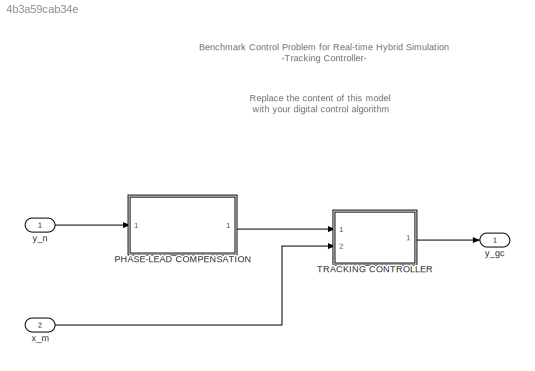
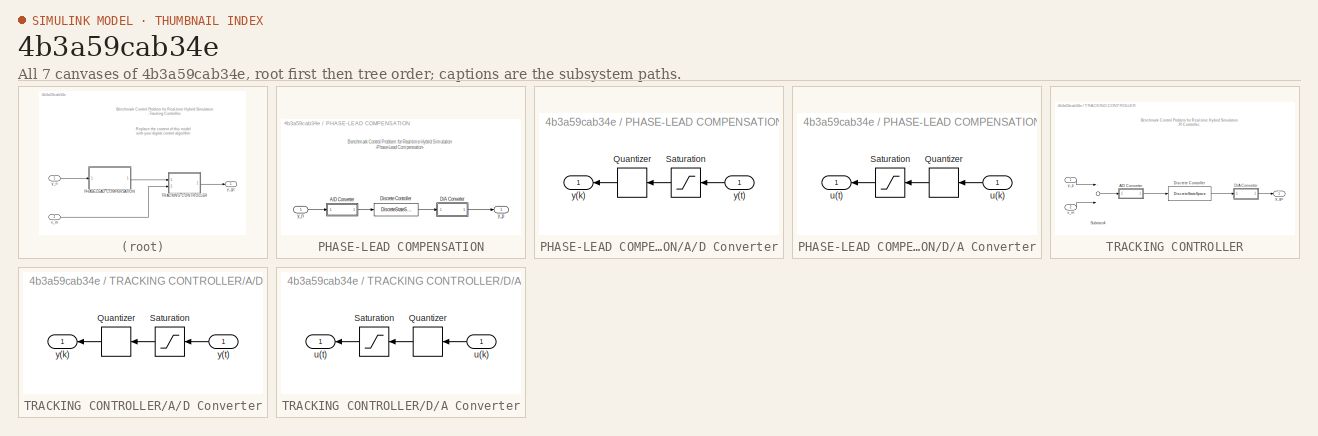
[diagram: thumbnail index - all 7 canvases of the model, root first then tree order]
MODEL slx_4b3a59cab34e
KIND model
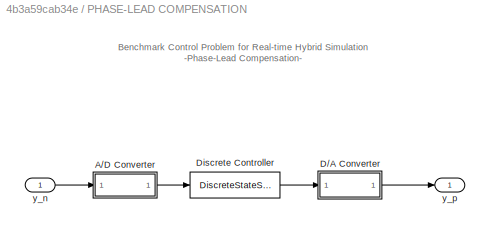
BLOCK [SubSystem] PHASE-LEAD COMPENSATION
  Ports = [1, 1]
  RequestExecContextInheritance = off
  Variant = off
BLOCK [SubSystem] PHASE-LEAD COMPENSATION/A//D Converter
  Ports = [1, 1]
  RequestExecContextInheritance = off
  Variant = off
BLOCK [Quantizer] PHASE-LEAD COMPENSATION/A//D Converter/Quantizer
  QuantizationInterval = quantize_int
BLOCK [Saturate] PHASE-LEAD COMPENSATION/A//D Converter/Saturation
  InputPortMap = u0
  LowerLimit = sat_limit_lower
  Ports = [1, 1]
  UpperLimit = sat_limit_upper
BLOCK [Outport] PHASE-LEAD COMPENSATION/A//D Converter/y(k)
  IconDisplay = Port number
BLOCK [Inport] PHASE-LEAD COMPENSATION/A//D Converter/y(t)
  IconDisplay = Port number
BLOCK [SubSystem] PHASE-LEAD COMPENSATION/D//A Converter
  Ports = [1, 1]
  RequestExecContextInheritance = off
  Variant = off
BLOCK [Quantizer] PHASE-LEAD COMPENSATION/D//A Converter/Quantizer
  QuantizationInterval = quantize_int
BLOCK [Saturate] PHASE-LEAD COMPENSATION/D//A Converter/Saturation
  InputPortMap = u0
  LowerLimit = sat_limit_lower
  Ports = [1, 1]
  UpperLimit = sat_limit_upper
BLOCK [Inport] PHASE-LEAD COMPENSATION/D//A Converter/u(k)
  IconDisplay = Port number
BLOCK [Outport] PHASE-LEAD COMPENSATION/D//A Converter/u(t)
  IconDisplay = Port number
BLOCK [DiscreteStateSpace] PHASE-LEAD COMPENSATION/Discrete Controller
  A = Apred
  B = Bpred
  C = Cpred
  D = Dpred
  SampleTime = dt_rths
BLOCK [Inport] PHASE-LEAD COMPENSATION/y_n
  IconDisplay = Port number
BLOCK [Outport] PHASE-LEAD COMPENSATION/y_p
  IconDisplay = Port number
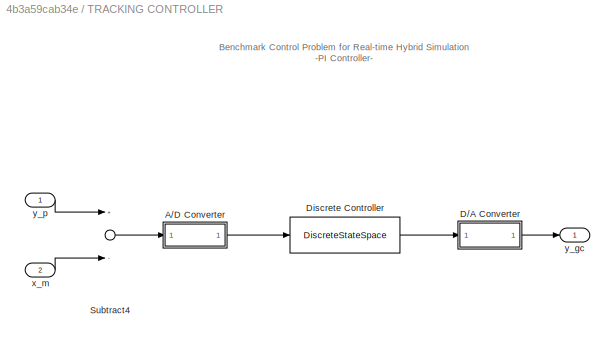
BLOCK [SubSystem] TRACKING CONTROLLER
  Ports = [2, 1]
  RequestExecContextInheritance = off
  Variant = off
BLOCK [SubSystem] TRACKING CONTROLLER/A//D Converter
  Ports = [1, 1]
  RequestExecContextInheritance = off
  Variant = off
BLOCK [Quantizer] TRACKING CONTROLLER/A//D Converter/Quantizer
  QuantizationInterval = quantize_int
BLOCK [Saturate] TRACKING CONTROLLER/A//D Converter/Saturation
  InputPortMap = u0
  LowerLimit = sat_limit_lower
  Ports = [1, 1]
  UpperLimit = sat_limit_upper
BLOCK [Outport] TRACKING CONTROLLER/A//D Converter/y(k)
  IconDisplay = Port number
BLOCK [Inport] TRACKING CONTROLLER/A//D Converter/y(t)
  IconDisplay = Port number
BLOCK [SubSystem] TRACKING CONTROLLER/D//A Converter
  Ports = [1, 1]
  RequestExecContextInheritance = off
  Variant = off
BLOCK [Quantizer] TRACKING CONTROLLER/D//A Converter/Quantizer
  QuantizationInterval = quantize_int
BLOCK [Saturate] TRACKING CONTROLLER/D//A Converter/Saturation
  InputPortMap = u0
  LowerLimit = sat_limit_lower
  Ports = [1, 1]
  UpperLimit = sat_limit_upper
BLOCK [Inport] TRACKING CONTROLLER/D//A Converter/u(k)
  IconDisplay = Port number
BLOCK [Outport] TRACKING CONTROLLER/D//A Converter/u(t)
  IconDisplay = Port number
BLOCK [DiscreteStateSpace] TRACKING CONTROLLER/Discrete Controller
  A = Acd
  B = Bcd
  C = Ccd
  D = Dcd
  SampleTime = dt_rths
BLOCK [Sum] TRACKING CONTROLLER/Subtract4
  InputSameDT = off
  Inputs = +-
  OutDataTypeStr = Inherit: Inherit via internal rule
  Ports = [2, 1]
  SaturateOnIntegerOverflow = off
BLOCK [Inport] TRACKING CONTROLLER/x_m
  IconDisplay = Port number
  Port = 2
BLOCK [Outport] TRACKING CONTROLLER/y_gc
  IconDisplay = Port number
BLOCK [Inport] TRACKING CONTROLLER/y_p
  IconDisplay = Port number
BLOCK [Inport] x_m
  IconDisplay = Port number
  Port = 2
BLOCK [Outport] y_gc
  IconDisplay = Port number
BLOCK [Inport] y_n
  IconDisplay = Port number
ANNOTATION (root): Replace the content of this model with your digital control algorithm
ANNOTATION (root): Benchmark Control Problem for Real-time Hybrid Simulation -Tracking Controller-
ANNOTATION PHASE-LEAD COMPENSATION: Benchmark Control Problem for Real-time Hybrid Simulation -Phase-Lead Compensation-
ANNOTATION TRACKING CONTROLLER: Benchmark Control Problem for Real-time Hybrid Simulation -PI Controller-
LINE PHASE-LEAD COMPENSATION/A//D Converter/Quantizer:1 -> PHASE-LEAD COMPENSATION/A//D Converter/y(k):1
LINE PHASE-LEAD COMPENSATION/A//D Converter/Saturation:1 -> PHASE-LEAD COMPENSATION/A//D Converter/Quantizer:1
LINE PHASE-LEAD COMPENSATION/A//D Converter/y(t):1 -> PHASE-LEAD COMPENSATION/A//D Converter/Saturation:1
LINE PHASE-LEAD COMPENSATION/A//D Converter:1 -> PHASE-LEAD COMPENSATION/Discrete Controller:1
LINE PHASE-LEAD COMPENSATION/D//A Converter/Quantizer:1 -> PHASE-LEAD COMPENSATION/D//A Converter/Saturation:1
LINE PHASE-LEAD COMPENSATION/D//A Converter/Saturation:1 -> PHASE-LEAD COMPENSATION/D//A Converter/u(t):1
LINE PHASE-LEAD COMPENSATION/D//A Converter/u(k):1 -> PHASE-LEAD COMPENSATION/D//A Converter/Quantizer:1
LINE PHASE-LEAD COMPENSATION/D//A Converter:1 -> PHASE-LEAD COMPENSATION/y_p:1
LINE PHASE-LEAD COMPENSATION/Discrete Controller:1 -> PHASE-LEAD COMPENSATION/D//A Converter:1
LINE PHASE-LEAD COMPENSATION/y_n:1 -> PHASE-LEAD COMPENSATION/A//D Converter:1
LINE PHASE-LEAD COMPENSATION:1 -> TRACKING CONTROLLER:1
LINE TRACKING CONTROLLER/A//D Converter/Quantizer:1 -> TRACKING CONTROLLER/A//D Converter/y(k):1
LINE TRACKING CONTROLLER/A//D Converter/Saturation:1 -> TRACKING CONTROLLER/A//D Converter/Quantizer:1
LINE TRACKING CONTROLLER/A//D Converter/y(t):1 -> TRACKING CONTROLLER/A//D Converter/Saturation:1
LINE TRACKING CONTROLLER/A//D Converter:1 -> TRACKING CONTROLLER/Discrete Controller:1
LINE TRACKING CONTROLLER/D//A Converter/Quantizer:1 -> TRACKING CONTROLLER/D//A Converter/Saturation:1
LINE TRACKING CONTROLLER/D//A Converter/Saturation:1 -> TRACKING CONTROLLER/D//A Converter/u(t):1
LINE TRACKING CONTROLLER/D//A Converter/u(k):1 -> TRACKING CONTROLLER/D//A Converter/Quantizer:1
LINE TRACKING CONTROLLER/D//A Converter:1 -> TRACKING CONTROLLER/y_gc:1
LINE TRACKING CONTROLLER/Discrete Controller:1 -> TRACKING CONTROLLER/D//A Converter:1
LINE TRACKING CONTROLLER/Subtract4:1 -> TRACKING CONTROLLER/A//D Converter:1
LINE TRACKING CONTROLLER/x_m:1 -> TRACKING CONTROLLER/Subtract4:2
LINE TRACKING CONTROLLER/y_p:1 -> TRACKING CONTROLLER/Subtract4:1
LINE TRACKING CONTROLLER:1 -> y_gc:1
LINE x_m:1 -> TRACKING CONTROLLER:2
LINE y_n:1 -> PHASE-LEAD COMPENSATION:1
